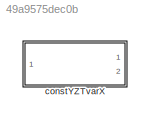
MODEL slx_49a9575dec0b
KIND library
CONFIG AbsTol = auto
CONFIG EnableMultiTasking = off
CONFIG FixedStep = auto
CONFIG MaxStep = auto
CONFIG MinStep = auto
CONFIG RelTol = 1e-3
CONFIG SampleTimeConstraint = Unconstrained
CONFIG SolverName = VariableStepAuto
CONFIG StartTime = 0.0
CONFIG StopTime = 10.0
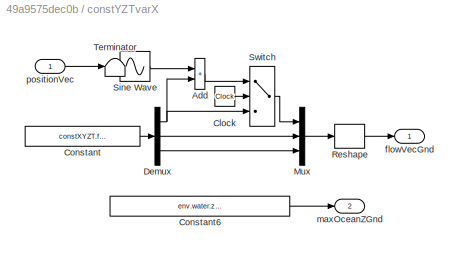
BLOCK [SubSystem] constYZTvarX
  Ports = [1, 2]
  RequestExecContextInheritance = off
BLOCK [Sum] constYZTvarX/Add
  IconShape = rectangular
  Ports = [2, 1]
BLOCK [Clock] constYZTvarX/Clock
BLOCK [Constant] constYZTvarX/Constant
  Value = constXYZT.flowVec.Value
BLOCK [Constant] constYZTvarX/Constant6
  Value = env.water.zGridPoints.Value(end)
BLOCK [Demux] constYZTvarX/Demux
  Outputs = 3
  Ports = [1, 3]
BLOCK [Mux] constYZTvarX/Mux
  DisplayOption = bar
  Inputs = 3
  Ports = [3, 1]
BLOCK [Reshape] constYZTvarX/Reshape
  OutputDimensionality = Column vector (2-D)
  Ports = [1, 1]
BLOCK [Sin] constYZTvarX/Sine Wave
  Amplitude = amp
  Frequency = freq
  Ports = [0, 1]
  SampleTime = 0
BLOCK [Switch] constYZTvarX/Switch
  Criteria = u2 > Threshold
  InputSameDT = off
  SaturateOnIntegerOverflow = off
  Threshold = 1400
BLOCK [Terminator] constYZTvarX/Terminator
BLOCK [Outport] constYZTvarX/flowVecGnd
  VectorParamsAs1DForOutWhenUnconnected = off
BLOCK [Outport] constYZTvarX/maxOceanZGnd
  Port = 2
  VectorParamsAs1DForOutWhenUnconnected = off
BLOCK [Inport] constYZTvarX/positionVec
LINE constYZTvarX/Add:1 -> constYZTvarX/Switch:1
LINE constYZTvarX/Clock:1 -> constYZTvarX/Switch:2
LINE constYZTvarX/Constant6:1 -> constYZTvarX/maxOceanZGnd:1
LINE constYZTvarX/Constant:1 -> constYZTvarX/Demux:1
NET constYZTvarX/Demux:1 -> constYZTvarX/Add:2, constYZTvarX/Switch:3
LINE constYZTvarX/Demux:2 -> constYZTvarX/Mux:2
LINE constYZTvarX/Demux:3 -> constYZTvarX/Mux:3
LINE constYZTvarX/Mux:1 -> constYZTvarX/Reshape:1
LINE constYZTvarX/Reshape:1 -> constYZTvarX/flowVecGnd:1
LINE constYZTvarX/Sine Wave:1 -> constYZTvarX/Add:1
LINE constYZTvarX/Switch:1 -> constYZTvarX/Mux:1
LINE constYZTvarX/positionVec:1 -> constYZTvarX/Terminator:1
note: NET lines group one-source signal fan-out (src -> all destinations, sorted); 1:1 wires keep LINE
